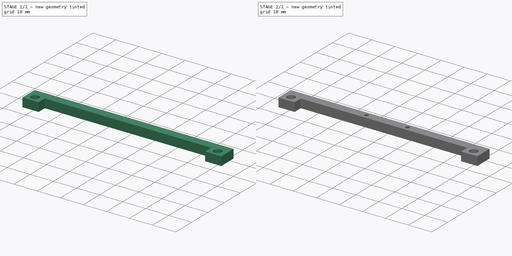
[diagram: build sequence overview — one tinted view per stage of 2, left to right]
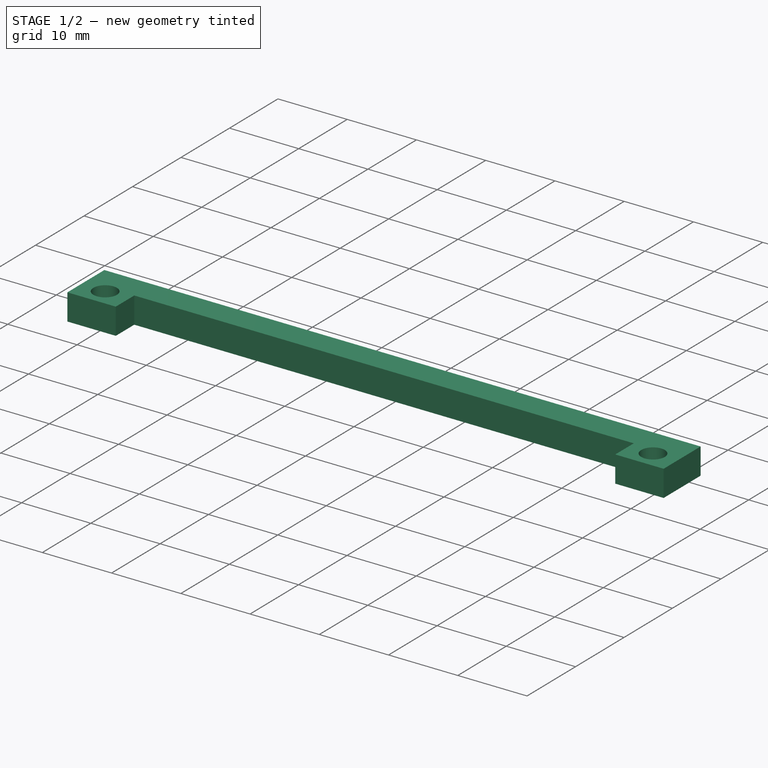
[diagram: stage 1 of 2 — iso view after this stage's code; geometry added in this stage tinted green]
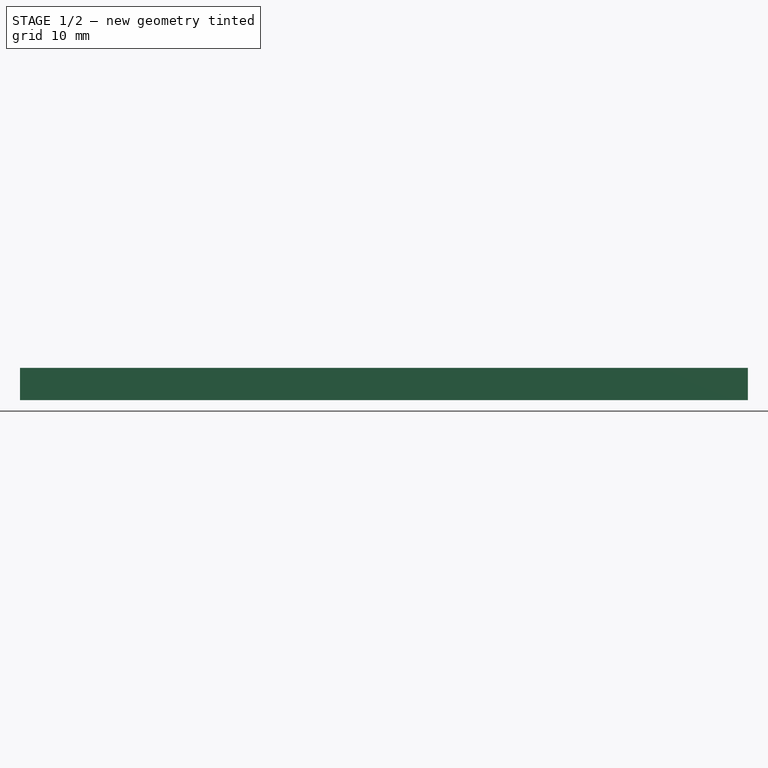
[diagram: stage 1 of 2 — front view after this stage's code; geometry added in this stage tinted green]
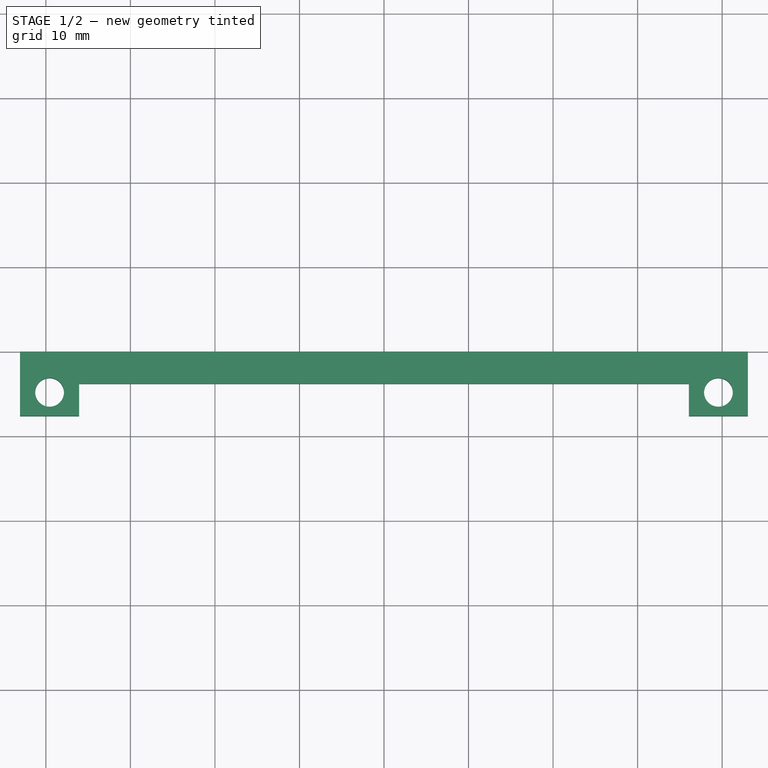
[diagram: stage 1 of 2 — top view after this stage's code; geometry added in this stage tinted green]
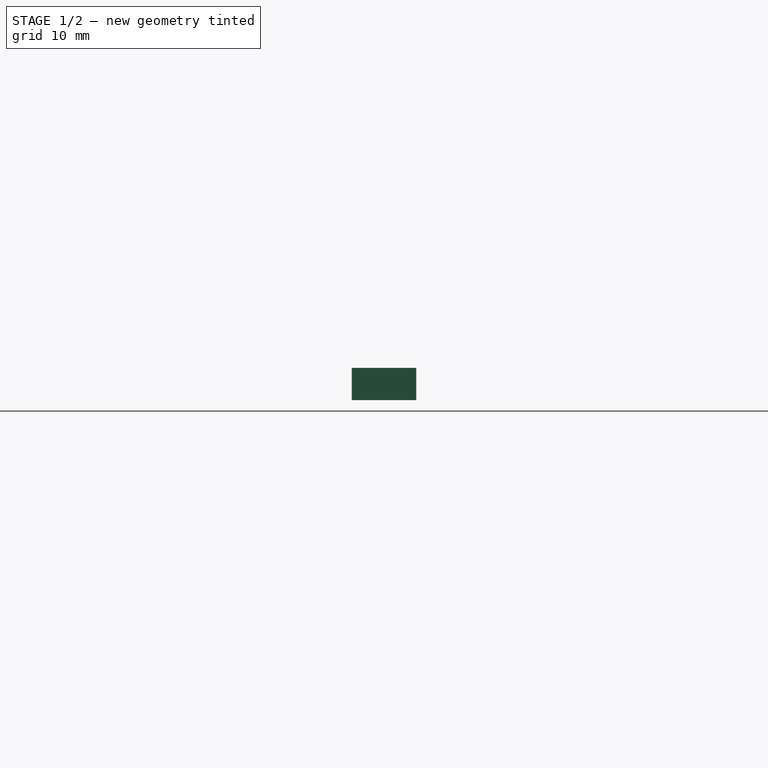
[diagram: stage 1 of 2 — right view after this stage's code; geometry added in this stage tinted green]
FCSTD DOCUMENT  (FreeCAD 1.0R39109 (Git))
Label: Sensor Mount Front
License: All rights reserved
LicenseURL: https://en.wikipedia.org/wiki/All_rights_reserved
objects: Sketcher::SketchObject×3, PartDesign::Hole×2, PartDesign::Pad×1, PartDesign::Body×1
note: 16 computed .brp shape members not serialized (recipe doc carries the construction recipe); baked Part::Feature solids carry a one-line shape summary decoded from their .brp

FEATURE [Sketcher::SketchObject] Sketch
  ArcFitTolerance = 1e-06
  AttachmentSupport = -> [XY_Plane]
  FullyConstrained = true
  MakeInternals = false
  MapMode = 5
  sketch-geometry (10):
    g0: LineSegment StartX=-43.053 StartY=0 StartZ=0 EndX=-43.053 EndY=-7.62 EndZ=0
    g1: LineSegment StartX=-43.053 StartY=-7.62 StartZ=0 EndX=-36.068 EndY=-7.62 EndZ=0
    g2: LineSegment StartX=-36.068 StartY=-7.62 StartZ=0 EndX=-36.068 EndY=-3.81 EndZ=0
    g3: LineSegment StartX=-36.068 StartY=-3.81 StartZ=0 EndX=36.068 EndY=-3.81 EndZ=0
    g4: LineSegment StartX=36.068 StartY=-3.81 StartZ=0 EndX=36.068 EndY=-7.62 EndZ=0
    g5: LineSegment StartX=36.068 StartY=-7.62 StartZ=0 EndX=43.053 EndY=-7.62 EndZ=0
    g6: LineSegment StartX=43.053 StartY=-7.62 StartZ=0 EndX=43.053 EndY=0 EndZ=0
    g7: LineSegment StartX=43.053 StartY=0 StartZ=0 EndX=-43.053 EndY=0 EndZ=0
    g8: GeomPoint X=2.1e-15 Y=-3.81 Z=0
    g9: GeomPoint X=0 Y=0 Z=0
  constraints (25):
    c: PointOnObject(g0,g-1)
    c: Vertical(g0)
    c: Coincident(g1,g0)
    c: Horizontal(g1)
    c: Coincident(g2,g1)
    c: Vertical(g2)
    c: Coincident(g3,g2)
    c: Horizontal(g3)
    c: Coincident(g4,g3)
    c: Vertical(g4)
    c: Coincident(g5,g4)
    c: Coincident(g6,g5)
    c: Vertical(g6)
    c: Coincident(g7,g6)
    c: Coincident(g7,g0)
    c: Equal(g0,g6)
    c: Equal(g2,g4)
    c: Equal(g5,g1)
    c: Symmetric(g3,g3,g8)
    c: Symmetric(g7,g7,g9)
    c: Coincident(g9,g-1)
    c: DistanceY(g0,g0) = 7.62
    c: Distance(g7,g3) = 3.81
    c: DistanceX(g1,g1) = 6.985
    c: DistanceX(g7,g7) = 86.106
FEATURE [PartDesign::Pad] Pad
  Direction = (0,0,1)
  Length = 3.81
  Length2 = 10
  Profile = -> Sketch
  ReferenceAxis = -> Sketch [N_Axis]
  Refine = true
  Suppressed = false
  Type = 0
FEATURE [Sketcher::SketchObject] Sketch001
  ArcFitTolerance = 1e-06
  AttachmentSupport = -> [Pad]
  ExternalGeometry = -> [Pad]
  FullyConstrained = true
  MakeInternals = false
  MapMode = 5
  Placement = pos=(0,0,3.81) rot=(0,0,1;0rad)
  sketch-geometry (4):
    g0: Circle CenterX=-39.5605 CenterY=-4.826 CenterZ=0 NormalX=0 NormalY=0 NormalZ=1 AngleXU=0 Radius=1.5
    g1: Circle CenterX=39.5605 CenterY=-4.826 CenterZ=0 NormalX=0 NormalY=0 NormalZ=1 AngleXU=0 Radius=1.5
    g2: LineSegment [constr] StartX=-39.5605 StartY=-7.62 StartZ=0 EndX=-39.5605 EndY=-4.826 EndZ=0
    g3: LineSegment [constr] StartX=39.5605 StartY=-4.826 StartZ=0 EndX=39.5605 EndY=-7.62 EndZ=0
  constraints (10):
    c: Distance(g0,g-3) = 2.794
    c: Distance(g1,g-4) = 2.794
    c: Symmetric(g-3,g-3,g2)
    c: Coincident(g2,g0)
    c: Vertical(g2)
    c: Coincident(g3,g1)
    c: Symmetric(g-4,g-4,g3)
    c: Vertical(g3)
    c: Diameter(g0) = 3
    c: Equal(g0,g1)
FEATURE [PartDesign::Hole] Hole
  BaseFeature = -> Pad
  CustomThreadClearance = 0
  Depth = 24.892
  DepthType = 0
  Diameter = 3.4
  DrillForDepth = false
  DrillPoint = 1
  DrillPointAngle = 118
  HoleCutCountersinkAngle = 90
  HoleCutCustomValues = false
  HoleCutDepth = 0
  HoleCutDiameter = 0
  HoleCutType = 0
  ModelThread = false
  Profile = -> Sketch001
  Refine = true
  Suppressed = false
  Tapered = false
  TaperedAngle = 90
  ThreadClass = 0
  ThreadDepth = 24.892
  ThreadDepthType = 0
  ThreadDirection = 0
  ThreadFit = 0
  ThreadSize = 9
  ThreadType = 1
  Threaded = false
  UseCustomThreadClearance = false
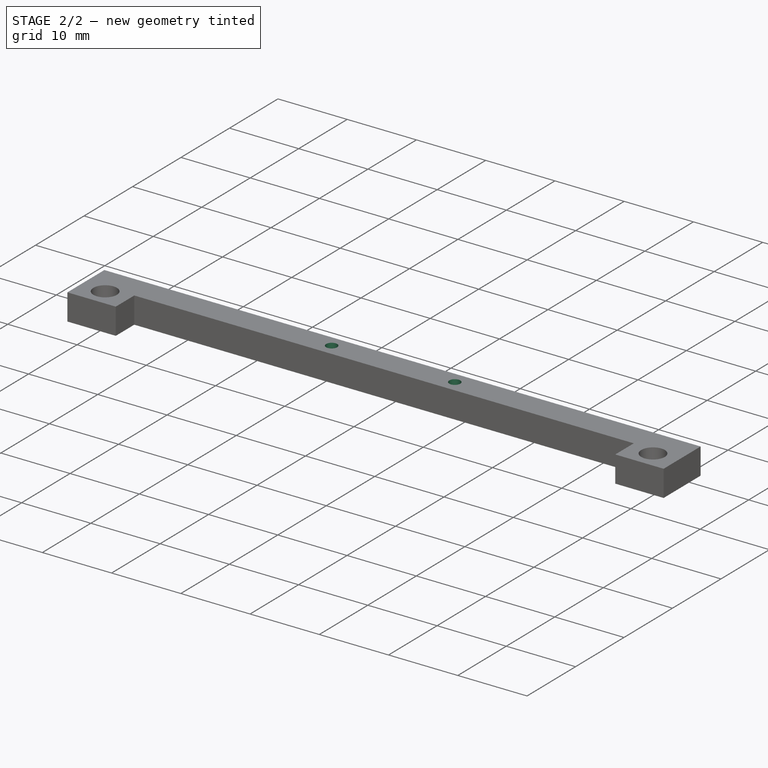
[diagram: stage 2 of 2 — iso view after this stage's code; geometry added in this stage tinted green]
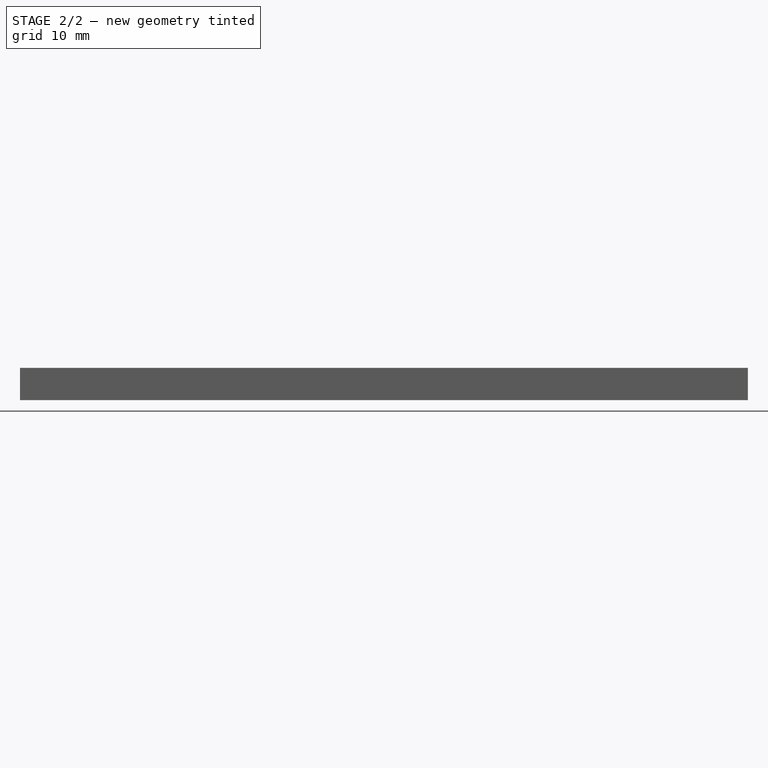
[diagram: stage 2 of 2 — front view after this stage's code; geometry added in this stage tinted green]
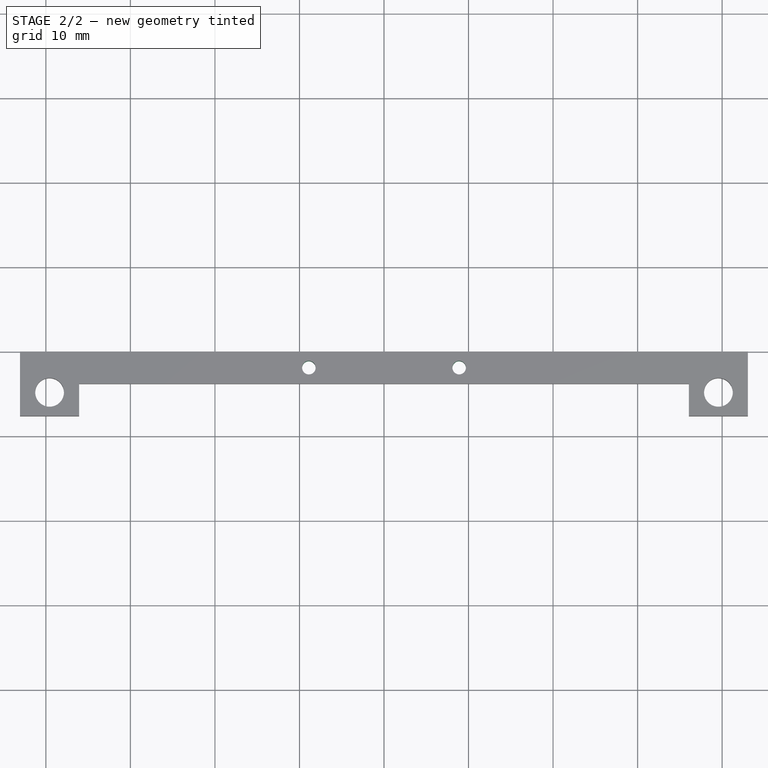
[diagram: stage 2 of 2 — top view after this stage's code; geometry added in this stage tinted green]
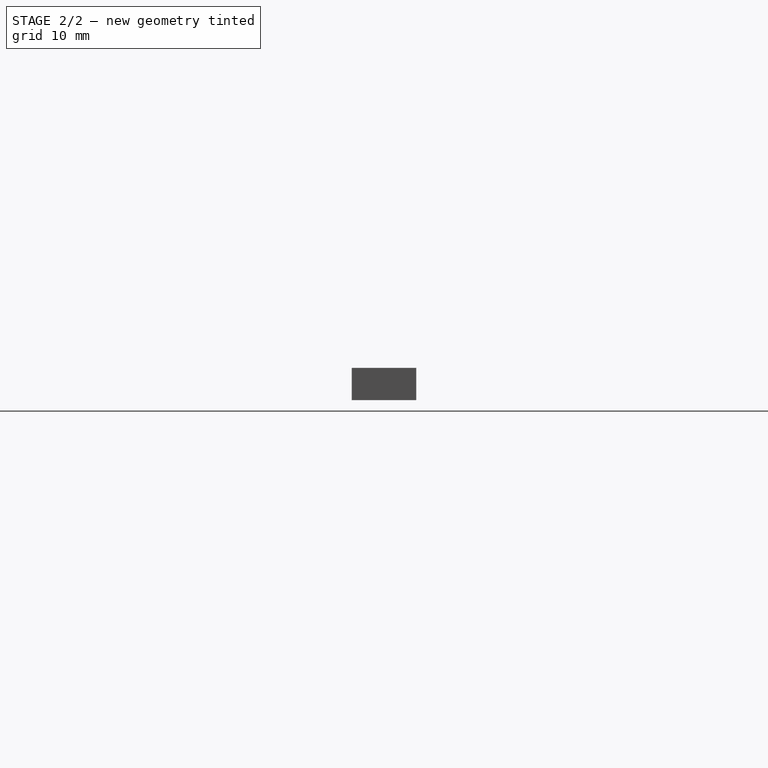
[diagram: stage 2 of 2 — right view after this stage's code; geometry added in this stage tinted green]
FEATURE [Sketcher::SketchObject] Sketch002
  ArcFitTolerance = 1e-06
  AttachmentSupport = -> [Hole]
  ExternalGeometry = -> [Hole]
  FullyConstrained = true
  MakeInternals = false
  MapMode = 5
  Placement = pos=(0,0,3.81) rot=(0,0,1;0rad)
  sketch-geometry (5):
    g0: LineSegment [constr] StartX=-8.89 StartY=-1.905 StartZ=0 EndX=8.89 EndY=-1.905 EndZ=0
    g1: LineSegment [constr] StartX=0 StartY=0 StartZ=0 EndX=0 EndY=-3.81 EndZ=0
    g2: GeomPoint [constr] X=0 Y=-1.905 Z=0
    g3: Circle CenterX=-8.89 CenterY=-1.905 CenterZ=0 NormalX=0 NormalY=0 NormalZ=1 AngleXU=0 Radius=1
    g4: Circle CenterX=8.89 CenterY=-1.905 CenterZ=0 NormalX=0 NormalY=0 NormalZ=1 AngleXU=0 Radius=1
  constraints (11):
    c: Horizontal(g0)
    c: Coincident(g1,g-1)
    c: PointOnObject(g1,g-2)
    c: PointOnObject(g1,g-3)
    c: Symmetric(g0,g0,g2)
    c: Symmetric(g1,g1,g2)
    c: Coincident(g3,g0)
    c: Coincident(g4,g0)
    c: Equal(g3,g4)
    c: Diameter(g3) = 2
    c: DistanceX(g0,g0) = 17.78
FEATURE [PartDesign::Hole] Hole001
  BaseFeature = -> Hole
  CustomThreadClearance = 0
  Depth = 24.892
  DepthType = 0
  Diameter = 1.6
  DrillForDepth = false
  DrillPoint = 1
  DrillPointAngle = 118
  HoleCutCountersinkAngle = 90
  HoleCutCustomValues = false
  HoleCutDepth = 0
  HoleCutDiameter = 2.54
  HoleCutType = 0
  ModelThread = false
  Profile = -> Sketch002
  Refine = true
  Suppressed = false
  Tapered = false
  TaperedAngle = 90
  ThreadClass = 0
  ThreadDepth = 24.892
  ThreadDepthType = 0
  ThreadDirection = 0
  ThreadFit = 0
  ThreadSize = 6
  ThreadType = 1
  Threaded = true
  UseCustomThreadClearance = false
FEATURE [PartDesign::Body] Body
  AllowCompound = false
  Group = -> [Sketch,Pad,Sketch001,Hole,Sketch002,Hole001]
  Origin = -> Origin
  Tip = -> Hole001
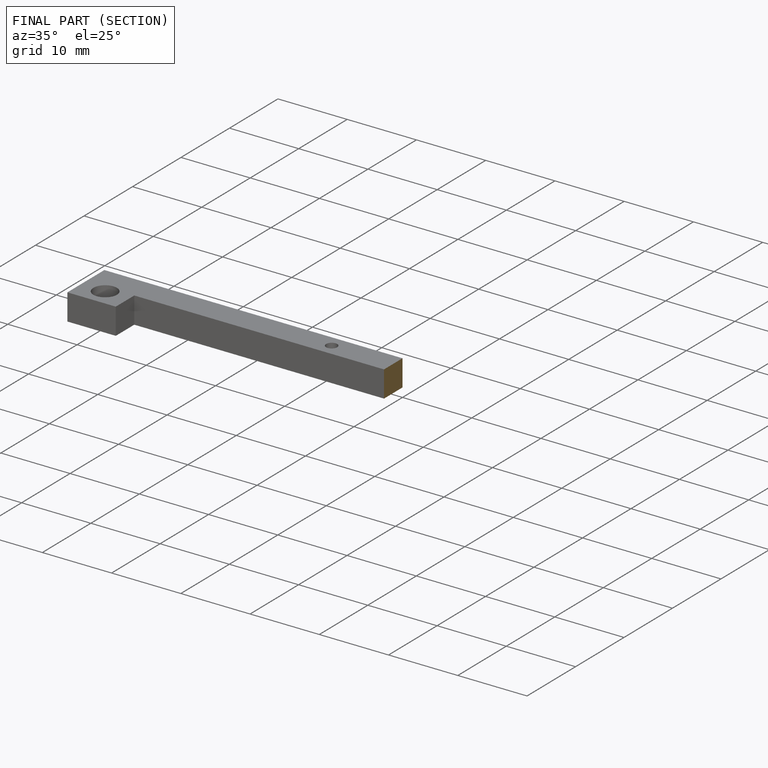
[diagram: finished part — half-section view (interior)]
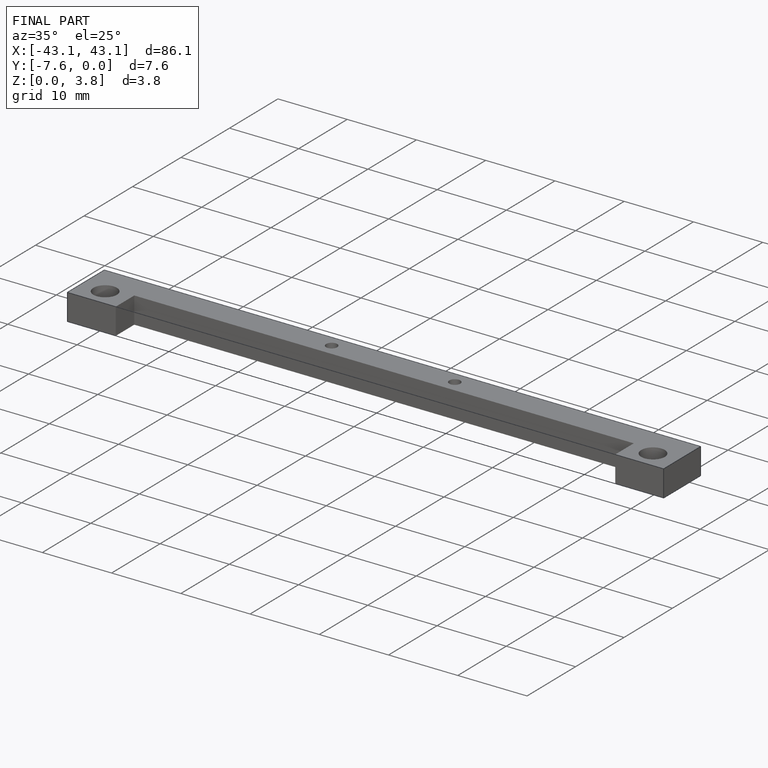
[diagram: finished part — iso view with bounding-box wireframe]
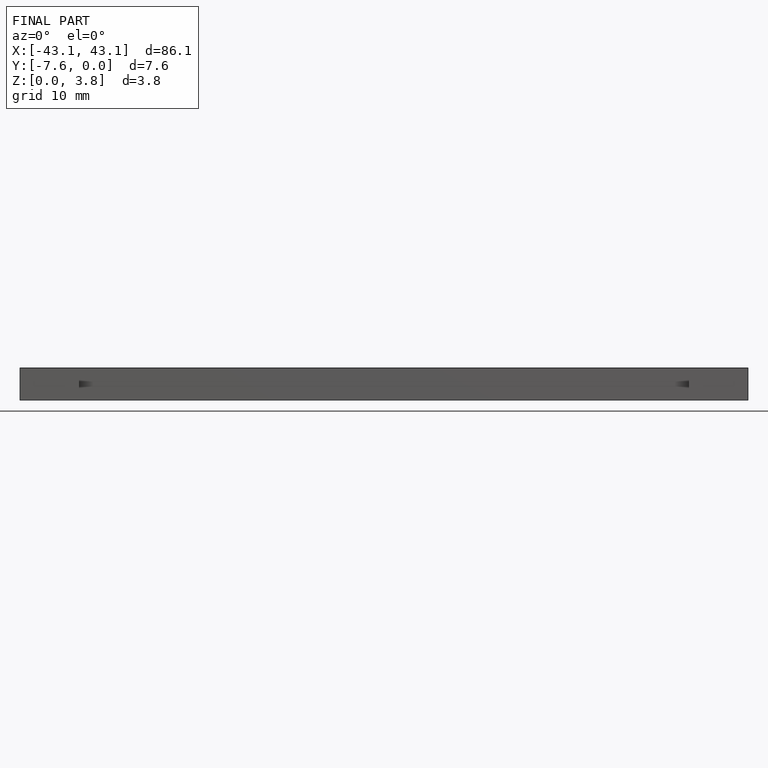
[diagram: finished part — front view with bounding-box wireframe]
